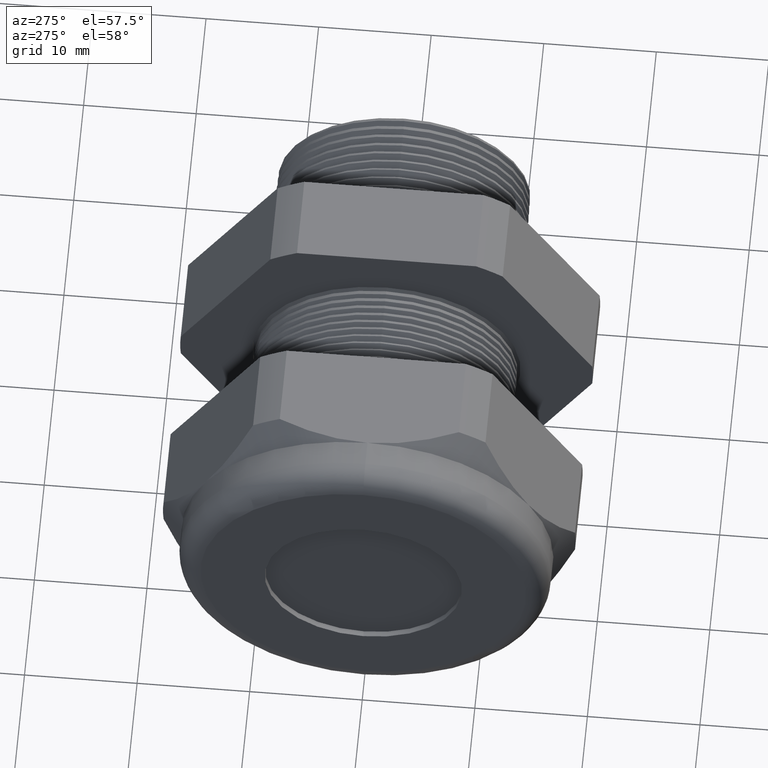
[diagram: clean part render]
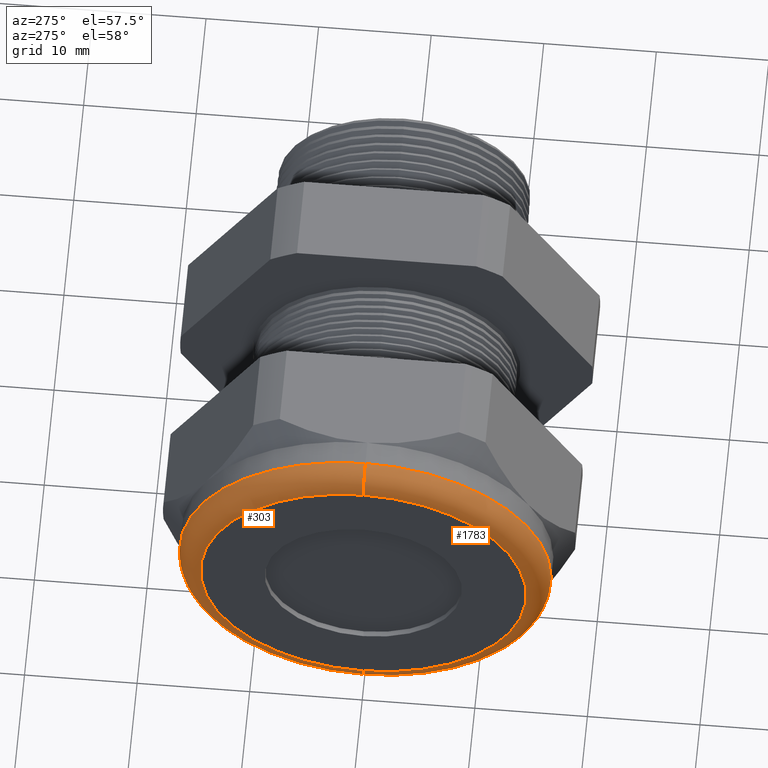
[diagram: same view with one multi-face feature highlighted, each face labeled with its STEP entity id]
A machine part, auxiliary view. The highlighted faces form ONE feature: a constant-radius fillet chain: 2 tangent blend faces with common blend radius 2.032 mm. The faces share edges in the B-rep.
Their STEP definitions:
[1] entity #1783 (Torus):
#610 = EDGE_CURVE ( 'NONE', #1890, #1886, #3521, .T. ) ;
#631 = EDGE_CURVE ( 'NONE', #1892, #1887, #3548, .T. ) ;
#1774 = EDGE_LOOP ( 'NONE', ( #1793, #1794, #1789, #1790 ) ) ;
#1783 = ADVANCED_FACE ( 'NONE', ( #3790 ), #3789, .T. ) ;
#1789 = ORIENTED_EDGE ( 'NONE', *, *, #1896, .T. ) ;
#1790 = ORIENTED_EDGE ( 'NONE', *, *, #631, .F. ) ;
#1793 = ORIENTED_EDGE ( 'NONE', *, *, #1893, .F. ) ;
#1794 = ORIENTED_EDGE ( 'NONE', *, *, #610, .F. ) ;
#1886 = VERTEX_POINT ( 'NONE', #3899 ) ;
#1887 = VERTEX_POINT ( 'NONE', #3898 ) ;
#1890 = VERTEX_POINT ( 'NONE', #3960 ) ;
#1892 = VERTEX_POINT ( 'NONE', #3959 ) ;
#1893 = EDGE_CURVE ( 'NONE', #1886, #1892, #3957, .T. ) ;
#1896 = EDGE_CURVE ( 'NONE', #1890, #1887, #3948, .T. ) ;
#3517 = DIRECTION ( 'NONE',  ( 0.0000000000000000000, 0.0000000000000000000, 1.000000000000000000 ) ) ;
#3518 = DIRECTION ( 'NONE',  ( 1.000000000000000000, 0.0000000000000000000, 0.0000000000000000000 ) ) ;
#3519 = CARTESIAN_POINT ( 'NONE',  ( -1.449999999999999700, 0.0000000000000000000, 0.0000000000000000000 ) ) ;
#3520 = AXIS2_PLACEMENT_3D ( 'NONE', #3519, #3518, #3517 ) ;
#3521 = CIRCLE ( 'NONE', #3520, 0.6499999999999999100 ) ;
#3544 = DIRECTION ( 'NONE',  ( 0.0000000000000000000, 0.0000000000000000000, 1.000000000000000000 ) ) ;
#3545 = DIRECTION ( 'NONE',  ( -1.000000000000000000, 0.0000000000000000000, 0.0000000000000000000 ) ) ;
#3546 = CARTESIAN_POINT ( 'NONE',  ( -1.529999999999999800, 0.0000000000000000000, 0.0000000000000000000 ) ) ;
#3547 = AXIS2_PLACEMENT_3D ( 'NONE', #3546, #3545, #3544 ) ;
#3548 = CIRCLE ( 'NONE', #3547, 0.5699999999999999500 ) ;
#3786 = DIRECTION ( 'NONE',  ( 0.0000000000000000000, 0.0000000000000000000, 1.000000000000000000 ) ) ;
#3787 = DIRECTION ( 'NONE',  ( -1.000000000000000000, 0.0000000000000000000, 0.0000000000000000000 ) ) ;
#3788 = AXIS2_PLACEMENT_3D ( 'NONE', #3794, #3787, #3786 ) ;
#3789 = TOROIDAL_SURFACE ( 'NONE', #3788, 0.5699999999999999500, 0.08000000000000000200 ) ;
#3790 = FACE_OUTER_BOUND ( 'NONE', #1774, .T. ) ;
#3794 = CARTESIAN_POINT ( 'NONE',  ( -1.449999999999999700, 0.0000000000000000000, 0.0000000000000000000 ) ) ;
#3898 = CARTESIAN_POINT ( 'NONE',  ( -1.529999999999999800, 0.0000000000000000000, 0.5699999999999999500 ) ) ;
#3899 = CARTESIAN_POINT ( 'NONE',  ( -1.449999999999999700, 0.0000000000000000000, -0.6499999999999999100 ) ) ;
#3944 = DIRECTION ( 'NONE',  ( 0.0000000000000000000, 0.0000000000000000000, -1.000000000000000000 ) ) ;
#3945 = DIRECTION ( 'NONE',  ( 0.0000000000000000000, -1.000000000000000000, 0.0000000000000000000 ) ) ;
#3946 = CARTESIAN_POINT ( 'NONE',  ( -1.449999999999999700, 0.0000000000000000000, 0.5699999999999999500 ) ) ;
#3947 = AXIS2_PLACEMENT_3D ( 'NONE', #3946, #3945, #3944 ) ;
#3948 = CIRCLE ( 'NONE', #3947, 0.07999999999999996000 ) ;
#3953 = DIRECTION ( 'NONE',  ( 0.0000000000000000000, -1.224646799147353900E-016, 1.000000000000000000 ) ) ;
#3954 = DIRECTION ( 'NONE',  ( 0.0000000000000000000, 1.000000000000000000, 1.224646799147353200E-016 ) ) ;
#3955 = CARTESIAN_POINT ( 'NONE',  ( -1.449999999999999700, 6.980486755139912600E-017, -0.5699999999999999500 ) ) ;
#3956 = AXIS2_PLACEMENT_3D ( 'NONE', #3955, #3954, #3953 ) ;
#3957 = CIRCLE ( 'NONE', #3956, 0.07999999999999996000 ) ;
#3959 = CARTESIAN_POINT ( 'NONE',  ( -1.529999999999999800, 7.470345474798854000E-017, -0.5699999999999999500 ) ) ;
#3960 = CARTESIAN_POINT ( 'NONE',  ( -1.449999999999999700, 7.960204194457794200E-017, 0.6499999999999999100 ) ) ;
[2] entity #303 (Torus):
#303 = ADVANCED_FACE ( 'NONE', ( #2960 ), #2959, .T. ) ;
#304 = EDGE_LOOP ( 'NONE', ( #308, #1895, #1891, #1884 ) ) ;
#308 = ORIENTED_EDGE ( 'NONE', *, *, #1883, .F. ) ;
#1883 = EDGE_CURVE ( 'NONE', #1886, #1890, #3903, .T. ) ;
#1884 = ORIENTED_EDGE ( 'NONE', *, *, #1896, .F. ) ;
#1886 = VERTEX_POINT ( 'NONE', #3899 ) ;
#1887 = VERTEX_POINT ( 'NONE', #3898 ) ;
#1890 = VERTEX_POINT ( 'NONE', #3960 ) ;
#1891 = ORIENTED_EDGE ( 'NONE', *, *, #1894, .F. ) ;
#1892 = VERTEX_POINT ( 'NONE', #3959 ) ;
#1893 = EDGE_CURVE ( 'NONE', #1886, #1892, #3957, .T. ) ;
#1894 = EDGE_CURVE ( 'NONE', #1887, #1892, #3952, .T. ) ;
#1895 = ORIENTED_EDGE ( 'NONE', *, *, #1893, .T. ) ;
#1896 = EDGE_CURVE ( 'NONE', #1890, #1887, #3948, .T. ) ;
#2954 = DIRECTION ( 'NONE',  ( 0.0000000000000000000, 0.0000000000000000000, 1.000000000000000000 ) ) ;
#2955 = DIRECTION ( 'NONE',  ( -1.000000000000000000, 0.0000000000000000000, 0.0000000000000000000 ) ) ;
#2956 = CARTESIAN_POINT ( 'NONE',  ( -1.449999999999999700, 0.0000000000000000000, 0.0000000000000000000 ) ) ;
#2957 = AXIS2_PLACEMENT_3D ( 'NONE', #2956, #2955, #2954 ) ;
#2959 = TOROIDAL_SURFACE ( 'NONE', #2957, 0.5699999999999999500, 0.08000000000000000200 ) ;
#2960 = FACE_OUTER_BOUND ( 'NONE', #304, .T. ) ;
#3898 = CARTESIAN_POINT ( 'NONE',  ( -1.529999999999999800, 0.0000000000000000000, 0.5699999999999999500 ) ) ;
#3899 = CARTESIAN_POINT ( 'NONE',  ( -1.449999999999999700, 0.0000000000000000000, -0.6499999999999999100 ) ) ;
#3900 = DIRECTION ( 'NONE',  ( 0.0000000000000000000, 0.0000000000000000000, 1.000000000000000000 ) ) ;
#3901 = DIRECTION ( 'NONE',  ( 1.000000000000000000, 0.0000000000000000000, 0.0000000000000000000 ) ) ;
#3902 = AXIS2_PLACEMENT_3D ( 'NONE', #3907, #3901, #3900 ) ;
#3903 = CIRCLE ( 'NONE', #3902, 0.6499999999999999100 ) ;
#3907 = CARTESIAN_POINT ( 'NONE',  ( -1.449999999999999700, 0.0000000000000000000, 0.0000000000000000000 ) ) ;
#3944 = DIRECTION ( 'NONE',  ( 0.0000000000000000000, 0.0000000000000000000, -1.000000000000000000 ) ) ;
#3945 = DIRECTION ( 'NONE',  ( 0.0000000000000000000, -1.000000000000000000, 0.0000000000000000000 ) ) ;
#3946 = CARTESIAN_POINT ( 'NONE',  ( -1.449999999999999700, 0.0000000000000000000, 0.5699999999999999500 ) ) ;
#3947 = AXIS2_PLACEMENT_3D ( 'NONE', #3946, #3945, #3944 ) ;
#3948 = CIRCLE ( 'NONE', #3947, 0.07999999999999996000 ) ;
#3949 = DIRECTION ( 'NONE',  ( 0.0000000000000000000, 0.0000000000000000000, 1.000000000000000000 ) ) ;
#3950 = DIRECTION ( 'NONE',  ( -1.000000000000000000, 0.0000000000000000000, 0.0000000000000000000 ) ) ;
#3951 = AXIS2_PLACEMENT_3D ( 'NONE', #3958, #3950, #3949 ) ;
#3952 = CIRCLE ( 'NONE', #3951, 0.5699999999999999500 ) ;
#3953 = DIRECTION ( 'NONE',  ( 0.0000000000000000000, -1.224646799147353900E-016, 1.000000000000000000 ) ) ;
#3954 = DIRECTION ( 'NONE',  ( 0.0000000000000000000, 1.000000000000000000, 1.224646799147353200E-016 ) ) ;
#3955 = CARTESIAN_POINT ( 'NONE',  ( -1.449999999999999700, 6.980486755139912600E-017, -0.5699999999999999500 ) ) ;
#3956 = AXIS2_PLACEMENT_3D ( 'NONE', #3955, #3954, #3953 ) ;
#3957 = CIRCLE ( 'NONE', #3956, 0.07999999999999996000 ) ;
#3958 = CARTESIAN_POINT ( 'NONE',  ( -1.529999999999999800, 0.0000000000000000000, 0.0000000000000000000 ) ) ;
#3959 = CARTESIAN_POINT ( 'NONE',  ( -1.529999999999999800, 7.470345474798854000E-017, -0.5699999999999999500 ) ) ;
#3960 = CARTESIAN_POINT ( 'NONE',  ( -1.449999999999999700, 7.960204194457794200E-017, 0.6499999999999999100 ) ) ;